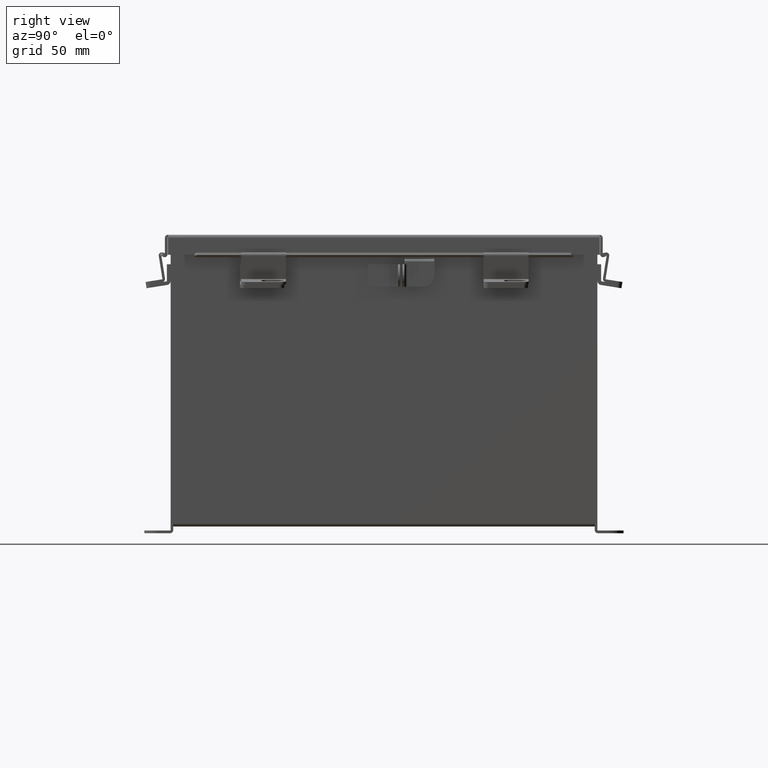
[diagram: clean part render]
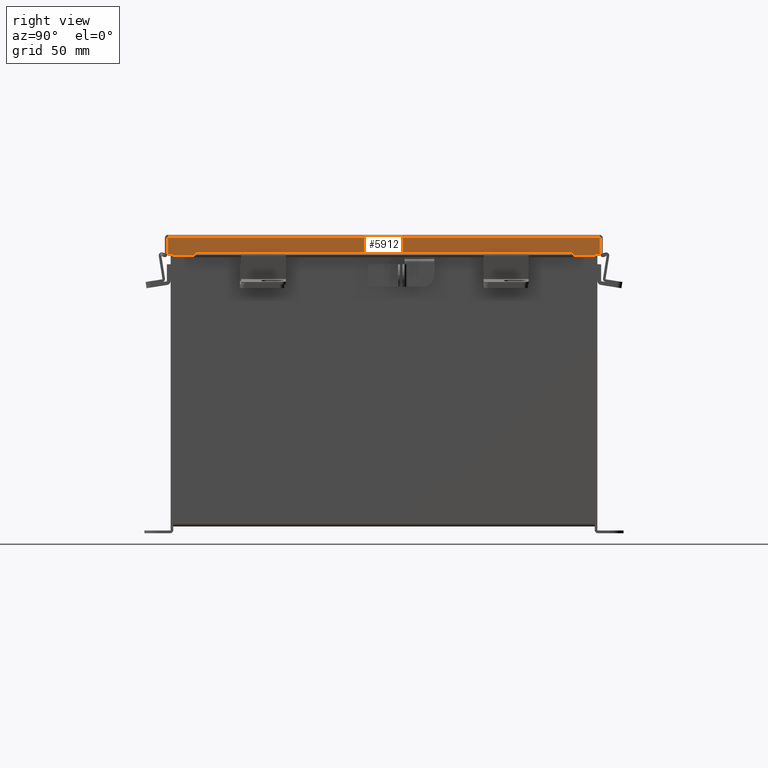
[diagram: same view with one face highlighted and labeled with its STEP entity id]
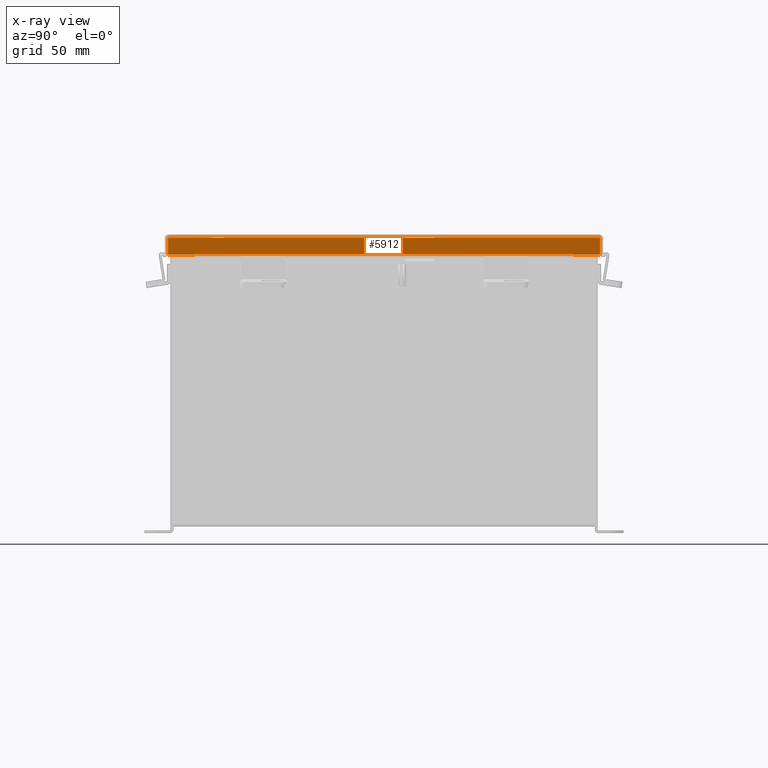
[diagram: x-ray of the same camera — body ghosted, the highlighted face saturated]
A machine part, right view. The second image highlights one B-rep face of the part: STEP entity #5912.
The next image is the same camera in x-ray: the body ghosted, the highlighted face saturated — about 0% of this face is hidden behind the body in this view.
In plain terms, the highlighted planar face has unit normal (-1, 0, -0).
Its self-contained STEP definition (entity closure, byte-faithful):
#135 = VECTOR ( 'NONE', #10615, 39.37007874015748100 ) ;
#237 = LINE ( 'NONE', #12222, #6731 ) ;
#414 = VERTEX_POINT ( 'NONE', #13113 ) ;
#597 = FACE_OUTER_BOUND ( 'NONE', #3565, .T. ) ;
#821 = CARTESIAN_POINT ( 'NONE',  ( -6.156250000000004400, 5.324478932188135600, 0.4872999999999985700 ) ) ;
#1016 = CARTESIAN_POINT ( 'NONE',  ( -6.156250000000002700, 5.324478932188135600, 0.4717115427318778200 ) ) ;
#1463 = ORIENTED_EDGE ( 'NONE', *, *, #10765, .T. ) ;
#1722 = PLANE ( 'NONE',  #5853 ) ;
#1958 = ORIENTED_EDGE ( 'NONE', *, *, #10255, .F. ) ;
#2251 = EDGE_CURVE ( 'NONE', #6402, #13119, #16699, .T. ) ;
#3050 = DIRECTION ( 'NONE',  ( -0.0000000000000000000, 1.000000000000000000, -0.0000000000000000000 ) ) ;
#3251 = VECTOR ( 'NONE', #12238, 39.37007874015748100 ) ;
#3565 = EDGE_LOOP ( 'NONE', ( #14766, #11431, #1958, #8749, #9072, #1463, #11245, #4757 ) ) ;
#3992 = DIRECTION ( 'NONE',  ( -4.484872552701437800E-015, 0.0000000000000000000, 1.000000000000000000 ) ) ;
#3998 = VERTEX_POINT ( 'NONE', #16835 ) ;
#4055 = DIRECTION ( 'NONE',  ( -0.0000000000000000000, 1.000000000000000000, 0.0000000000000000000 ) ) ;
#4167 = VECTOR ( 'NONE', #11805, 39.37007874015748100 ) ;
#4757 = ORIENTED_EDGE ( 'NONE', *, *, #13038, .F. ) ;
#4815 = EDGE_CURVE ( 'NONE', #414, #10523, #6915, .T. ) ;
#5078 = EDGE_CURVE ( 'NONE', #6402, #10663, #9439, .T. ) ;
#5112 = CARTESIAN_POINT ( 'NONE',  ( -6.156250000000002700, 0.0000000000000000000, 0.4872999999999997300 ) ) ;
#5788 = VECTOR ( 'NONE', #16818, 39.37007874015748100 ) ;
#5853 = AXIS2_PLACEMENT_3D ( 'NONE', #5965, #8319, #16933 ) ;
#5912 = ADVANCED_FACE ( 'NONE', ( #597 ), #1722, .F. ) ;
#5965 = CARTESIAN_POINT ( 'NONE',  ( -6.156250000000000000, 0.0000000000000000000, -2.787081030857980700E-014 ) ) ;
#6266 = VECTOR ( 'NONE', #13369, 39.37007874015748100 ) ;
#6281 = VECTOR ( 'NONE', #4055, 39.37007874015748100 ) ;
#6402 = VERTEX_POINT ( 'NONE', #16564 ) ;
#6711 = LINE ( 'NONE', #5112, #6266 ) ;
#6731 = VECTOR ( 'NONE', #3992, 39.37007874015748100 ) ;
#6781 = CARTESIAN_POINT ( 'NONE',  ( -6.156250000000002700, 0.0000000000000000000, 0.4872999999999997300 ) ) ;
#6850 = VERTEX_POINT ( 'NONE', #8294 ) ;
#6915 = LINE ( 'NONE', #13814, #3251 ) ;
#7473 = LINE ( 'NONE', #1016, #135 ) ;
#7828 = LINE ( 'NONE', #821, #4167 ) ;
#7880 = EDGE_CURVE ( 'NONE', #6850, #14984, #7828, .T. ) ;
#8294 = CARTESIAN_POINT ( 'NONE',  ( -6.156250000000002700, 5.324478932188135600, 0.4872999999999997300 ) ) ;
#8319 = DIRECTION ( 'NONE',  ( 1.000000000000000000, 0.0000000000000000000, 4.484872552701437800E-015 ) ) ;
#8749 = ORIENTED_EDGE ( 'NONE', *, *, #2251, .F. ) ;
#9072 = ORIENTED_EDGE ( 'NONE', *, *, #5078, .T. ) ;
#9439 = LINE ( 'NONE', #15675, #5788 ) ;
#10255 = EDGE_CURVE ( 'NONE', #13119, #3998, #237, .T. ) ;
#10259 = EDGE_CURVE ( 'NONE', #6850, #3998, #17272, .T. ) ;
#10398 = CARTESIAN_POINT ( 'NONE',  ( -6.156250000000002700, -6.074478932188137400, 0.4872999999999997300 ) ) ;
#10523 = VERTEX_POINT ( 'NONE', #16996 ) ;
#10615 = DIRECTION ( 'NONE',  ( -0.0000000000000000000, -1.000000000000000000, -0.0000000000000000000 ) ) ;
#10663 = VERTEX_POINT ( 'NONE', #10398 ) ;
#10765 = EDGE_CURVE ( 'NONE', #10663, #10523, #6711, .T. ) ;
#11245 = ORIENTED_EDGE ( 'NONE', *, *, #4815, .F. ) ;
#11306 = CARTESIAN_POINT ( 'NONE',  ( -6.156250000000002700, 5.324478932188135600, 0.4717115427318778200 ) ) ;
#11431 = ORIENTED_EDGE ( 'NONE', *, *, #10259, .T. ) ;
#11805 = DIRECTION ( 'NONE',  ( 1.401985044024100300E-013, 0.0000000000000000000, -1.000000000000000000 ) ) ;
#12177 = CARTESIAN_POINT ( 'NONE',  ( -6.156250000000000000, 6.074478932188137400, 0.01299999999999977400 ) ) ;
#12222 = CARTESIAN_POINT ( 'NONE',  ( -6.156250000000000000, 6.074478932188137400, -3.350199796867981300E-016 ) ) ;
#12238 = DIRECTION ( 'NONE',  ( -7.009925220120348700E-014, -7.009925220120348700E-014, 1.000000000000000000 ) ) ;
#13038 = EDGE_CURVE ( 'NONE', #14984, #414, #7473, .T. ) ;
#13113 = CARTESIAN_POINT ( 'NONE',  ( -6.156250000000002700, -5.324478932188133000, 0.4717115427318778200 ) ) ;
#13119 = VERTEX_POINT ( 'NONE', #12177 ) ;
#13369 = DIRECTION ( 'NONE',  ( -0.0000000000000000000, 1.000000000000000000, 0.0000000000000000000 ) ) ;
#13474 = VECTOR ( 'NONE', #3050, 39.37007874015748100 ) ;
#13814 = CARTESIAN_POINT ( 'NONE',  ( -6.156250000000002700, -5.324478932188133000, 0.4717115427318778200 ) ) ;
#14766 = ORIENTED_EDGE ( 'NONE', *, *, #7880, .F. ) ;
#14984 = VERTEX_POINT ( 'NONE', #11306 ) ;
#15136 = CARTESIAN_POINT ( 'NONE',  ( -6.156250000000000000, 6.156249999999998200, 0.01299999999999978100 ) ) ;
#15675 = CARTESIAN_POINT ( 'NONE',  ( -6.156250000000000000, -6.074478932188137400, -2.787081030857980700E-014 ) ) ;
#16564 = CARTESIAN_POINT ( 'NONE',  ( -6.156250000000000000, -6.074478932188137400, 0.01299999999999978100 ) ) ;
#16699 = LINE ( 'NONE', #15136, #13474 ) ;
#16818 = DIRECTION ( 'NONE',  ( -4.484872552701437800E-015, 0.0000000000000000000, 1.000000000000000000 ) ) ;
#16835 = CARTESIAN_POINT ( 'NONE',  ( -6.156250000000002700, 6.074478932188137400, 0.4872999999999997300 ) ) ;
#16933 = DIRECTION ( 'NONE',  ( 4.484872552701437800E-015, 0.0000000000000000000, -1.000000000000000000 ) ) ;
#16996 = CARTESIAN_POINT ( 'NONE',  ( -6.156250000000002700, -5.324478932188134700, 0.4872999999999997300 ) ) ;
#17272 = LINE ( 'NONE', #6781, #6281 ) ;